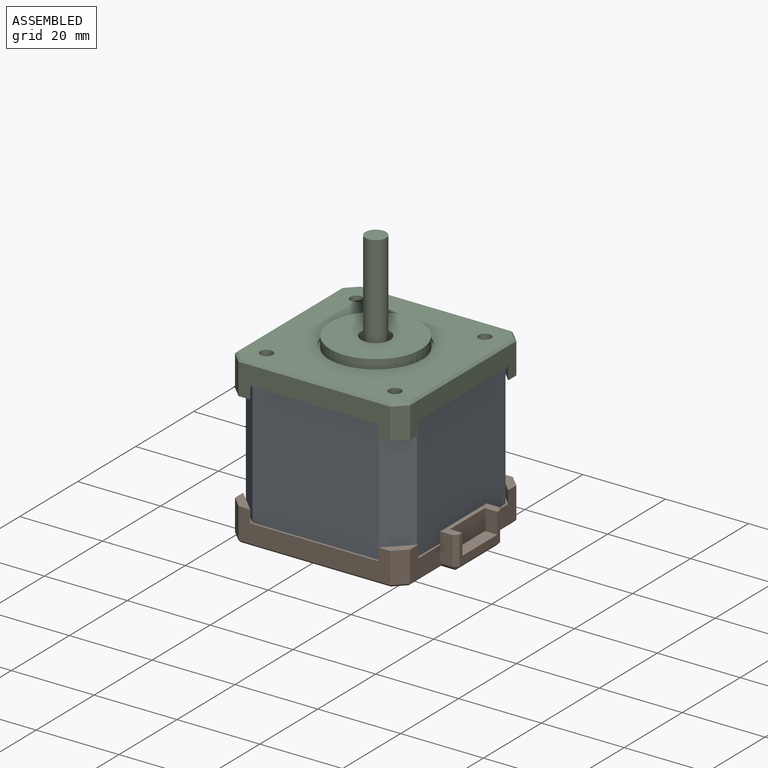
[diagram: assembled view]
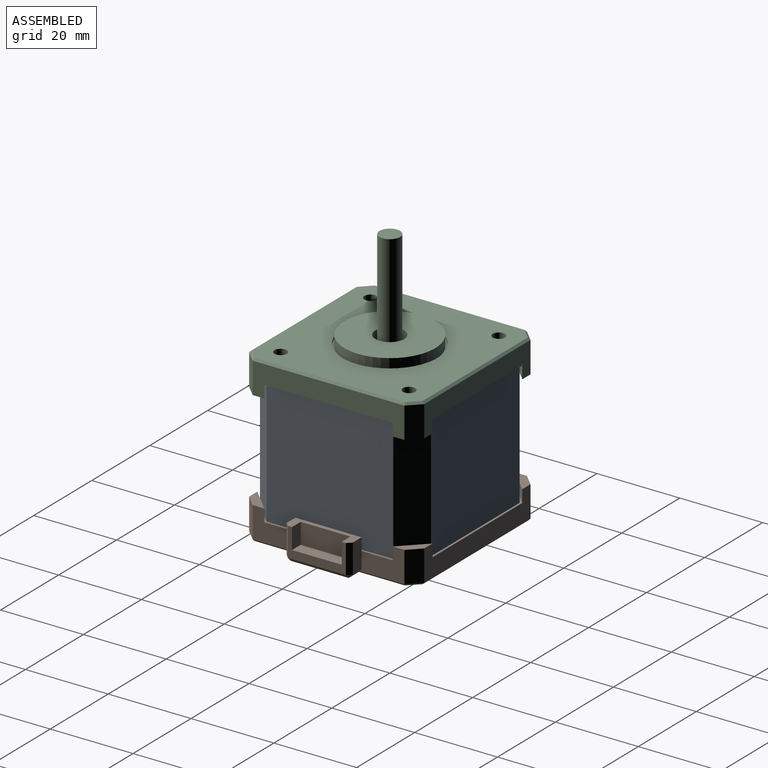
[diagram: assembled view, second angle]
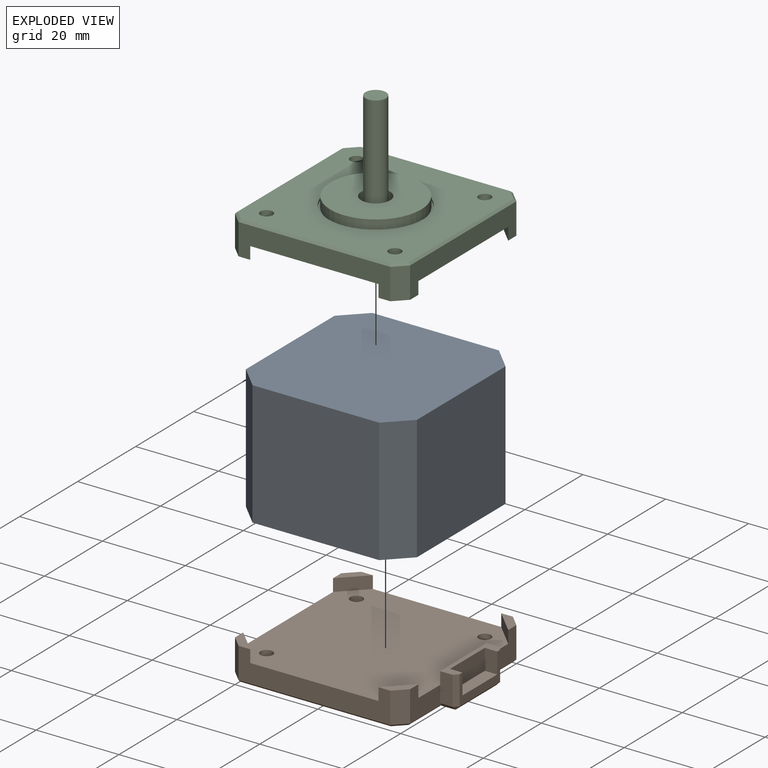
[diagram: exploded view]
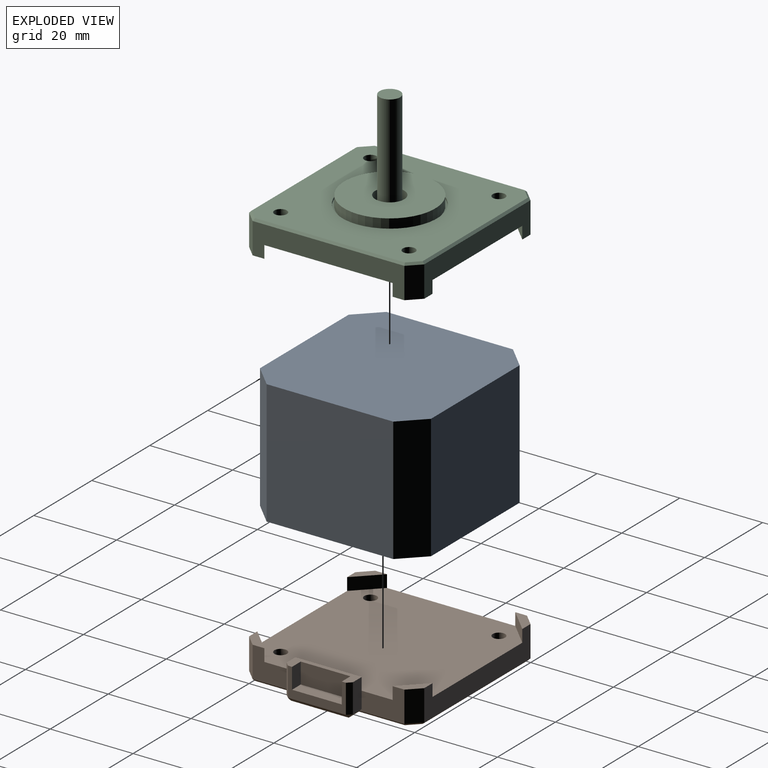
[diagram: exploded view, second angle]
ASSEMBLY  parts=3 mates=2
PART A: 10 faces, bbox 41.3x41.3x30 mm
  f0: plane 30.57x30mm, normal (0,1,0), area 917.2mm2, adj f1,f7,f8,f9
  f1: plane 30x5.36mm, normal (-0.71,0.71,0), area 227.6mm2, adj f0,f2,f8,f9
  f2: plane 30.57x30mm, normal (-1,0,0), area 917.2mm2, adj f1,f3,f8,f9
  f3: plane 30x5.36mm, normal (-0.71,-0.71,0), area 227.6mm2, adj f2,f4,f8,f9
  f4: plane 30.57x30mm, normal (0,-1,0), area 917.2mm2, adj f3,f5,f8,f9
  f5: plane 30x5.36mm, normal (0.71,-0.71,0), area 227.6mm2, adj f4,f6,f8,f9
  f6: plane 30.57x30mm, normal (1,0,0), area 917.2mm2, adj f5,f7,f8,f9
  f7: plane 30x5.36mm, normal (0.71,0.71,0), area 227.6mm2, adj f0,f6,f8,f9
  f8: plane 41.3x41.3mm, normal (0,0,1), area 1648.1mm2, adj f0,f1,f2,f3,f4,f5,f6,f7
  f9: plane 41.3x41.3mm, normal (0,0,-1), area 1648.1mm2, adj f0,f1,f2,f3,f4,f5,f6,f7
PART B: 48 faces, bbox 46.3x42.3x8 mm
  f0: plane 42.3x42.3mm, normal (0,0,-1), area 1697mm2, adj f1,f3,f5,f7,f9,f12,f13,f14
  f1: plane 10.82x7.5mm, normal (1,0,0), area 55.1mm2, adj f0,f2,f15,f22,f23,f32,f39
  f2: plane 7.5x2.83mm, normal (0.71,0.71,0), area 30mm2, adj f1,f3,f23,f40
  f3: plane 36.64x7.5mm, normal (0,1,0), area 181.9mm2, adj f0,f2,f4,f20,f21,f22,f23,f41
  f4: plane 7.5x2.83mm, normal (-0.71,0.71,0), area 30mm2, adj f3,f5,f21,f42
  f5: plane 36.64x7.5mm, normal (-1,0,0), area 181.9mm2, adj f0,f4,f6,f18,f19,f20,f21,f43
  f6: plane 7.5x2.83mm, normal (-0.71,-0.71,0), area 30mm2, adj f5,f7,f19,f44
  f7: plane 36.64x7.5mm, normal (0,-1,0), area 181.9mm2, adj f0,f6,f8,f18,f19,f29,f30,f45
  f8: plane 7.5x2.83mm, normal (0.71,-0.71,0), area 30mm2, adj f7,f9,f30,f46
  f9: plane 10.82x7.5mm, normal (1,0,0), area 55.1mm2, adj f0,f8,f10,f29,f30,f35,f47
  f10: plane 7x3mm, normal (0,-1,0), area 21mm2, adj f9,f25,f28,f35,f38
  f11: plane 14x7mm, normal (1,0,0), area 38mm2, adj f24,f26,f28,f31,f33,f36,f38
  f12: cylinder r=1.5mm len=5mm, axis (0,0,-1), area 47.1mm2, adj f0,f17
  f13: cylinder r=1.5mm len=5mm, axis (0,0,-1), area 47.1mm2, adj f0,f17
  f14: cylinder r=1.5mm len=5mm, axis (0,0,-1), area 47.1mm2, adj f0,f17
  f15: plane 7x3mm, normal (0,1,0), area 21mm2, adj f1,f25,f28,f32,f33
  f16: cylinder r=1.5mm len=5mm, axis (0,0,-1), area 47.1mm2, adj f0,f17
  f17: plane 44.8x41.3mm, normal (0,0,1), area 1713.6mm2, adj f12,f13,f14,f16,f32,f35,f36,f39
  f18: plane 5.66x5.66mm, normal (0.71,0.71,0), area 24mm2, adj f0,f5,f7,f19
  f19: plane 5.66x5.66mm, normal (0,0,-1), area 12mm2, adj f5,f6,f7,f18
  f20: plane 5.66x5.66mm, normal (0.71,-0.71,0), area 24mm2, adj f0,f3,f5,f21
  f21: plane 5.66x5.66mm, normal (0,0,-1), area 12mm2, adj f3,f4,f5,f20
  f22: plane 5.66x5.66mm, normal (-0.71,-0.71,0), area 24mm2, adj f0,f1,f3,f23
  f23: plane 5.66x5.66mm, normal (0,0,-1), area 12mm2, adj f1,f2,f3,f22
  f24: plane 5x3mm, normal (0,-1,0), area 15mm2, adj f11,f27,f28,f31
  f25: plane 16x3mm, normal (-1,0,0), area 48mm2, adj f0,f10,f15,f28
  f26: plane 5x3mm, normal (0,1,0), area 15mm2, adj f11,f27,f28,f31
  f27: plane 12x5mm, normal (1,0,0), area 60mm2, adj f24,f26,f28,f31
  f28: plane 16x4mm, normal (0,0,-1), area 27mm2, adj f10,f11,f15,f24,f25,f26,f27,f33
  f29: plane 5.66x5.66mm, normal (-0.71,0.71,0), area 24mm2, adj f0,f7,f9,f30
  f30: plane 5.66x5.66mm, normal (0,0,-1), area 12mm2, adj f7,f8,f9,f29
  f31: plane 12x3mm, normal (0,0,-1), area 36mm2, adj f11,f24,f26,f27
  f32: plane 3.5x1mm, normal (0,0.71,0.71), area 4.4mm2, adj f1,f15,f17,f34,f39
  f33: plane 7x1mm, normal (0.71,0.71,0), area 9.9mm2, adj f11,f15,f28,f34
  f34: plane 1x1mm, normal (0.58,0.58,0.58), area 0.9mm2, adj f32,f33,f36
  f35: plane 3.5x1mm, normal (0,-0.71,0.71), area 4.4mm2, adj f9,f10,f17,f37,f47
  f36: plane 14x1mm, normal (0.71,0,0.71), area 19.8mm2, adj f11,f17,f34,f37
  f37: plane 1x1mm, normal (0.58,-0.58,0.58), area 0.9mm2, adj f35,f36,f38
  f38: plane 7x1mm, normal (0.71,-0.71,0), area 9.9mm2, adj f10,f11,f28,f37
  f39: plane 11.32x0.5mm, normal (0.71,0,0.71), area 7.8mm2, adj f1,f17,f32,f40
  f40: plane 3.04x3.04mm, normal (0.5,0.5,0.71), area 2.7mm2, adj f2,f17,f39,f41
  f41: plane 36.64x0.5mm, normal (0,0.71,0.71), area 25.8mm2, adj f3,f17,f40,f42
  f42: plane 3.04x3.04mm, normal (-0.5,0.5,0.71), area 2.7mm2, adj f4,f17,f41,f43
  f43: plane 36.64x0.5mm, normal (-0.71,0,0.71), area 25.8mm2, adj f5,f17,f42,f44
  f44: plane 3.04x3.04mm, normal (-0.5,-0.5,0.71), area 2.7mm2, adj f6,f17,f43,f45
  f45: plane 36.64x0.5mm, normal (0,-0.71,0.71), area 25.8mm2, adj f7,f17,f44,f46
  f46: plane 3.04x3.04mm, normal (0.5,-0.5,0.71), area 2.7mm2, adj f8,f17,f45,f47
  f47: plane 11.32x0.5mm, normal (0.71,0,0.71), area 7.8mm2, adj f9,f17,f35,f46
PART C: 38 faces, bbox 42.3x42.3x32 mm
  f0: plane 36.64x7.5mm, normal (-1,0,0), area 181.9mm2, adj f1,f10,f13,f14,f15,f20,f21,f32
  f1: plane 7.5x2.83mm, normal (-0.71,-0.71,0), area 30mm2, adj f0,f2,f15,f34
  f2: plane 36.64x7.5mm, normal (0,-1,0), area 181.9mm2, adj f1,f3,f13,f14,f15,f16,f17,f36
  f3: plane 7.5x2.83mm, normal (0.71,-0.71,0), area 30mm2, adj f2,f4,f17,f37
  f4: plane 36.64x7.5mm, normal (1,0,0), area 181.9mm2, adj f3,f5,f13,f16,f17,f18,f19,f35
  f5: plane 7.5x2.83mm, normal (0.71,0.71,0), area 30mm2, adj f4,f6,f19,f33
  f6: plane 36.64x7.5mm, normal (0,1,0), area 181.9mm2, adj f5,f10,f13,f18,f19,f20,f21,f31
  f7: cylinder r=1.5mm len=5mm, axis (0,0,-1), area 47.1mm2, adj f12,f13
  f8: cylinder r=1.5mm len=5mm, axis (0,0,-1), area 47.1mm2, adj f12,f13
  f9: cylinder r=1.5mm len=5mm, axis (0,0,-1), area 47.1mm2, adj f12,f13
  f10: plane 7.5x2.83mm, normal (-0.71,0.71,0), area 30mm2, adj f0,f6,f21,f30
  f11: cylinder r=1.5mm len=5mm, axis (0,0,-1), area 47.1mm2, adj f12,f13
  f12: plane 41.3x41.3mm, normal (0,0,1), area 1249.1mm2, adj f7,f8,f9,f11,f23,f30,f31,f32
  f13: plane 42.3x42.3mm, normal (0,0,-1), area 1697mm2, adj f0,f2,f4,f6,f7,f8,f9,f11
  f14: plane 5.66x5.66mm, normal (0.71,0.71,0), area 24mm2, adj f0,f2,f13,f15
  f15: plane 5.66x5.66mm, normal (0,0,-1), area 12mm2, adj f0,f1,f2,f14
  f16: plane 5.66x5.66mm, normal (-0.71,0.71,0), area 24mm2, adj f2,f4,f13,f17
  f17: plane 5.66x5.66mm, normal (0,0,-1), area 12mm2, adj f2,f3,f4,f16
  f18: plane 5.66x5.66mm, normal (-0.71,-0.71,0), area 24mm2, adj f4,f6,f13,f19
  f19: plane 5.66x5.66mm, normal (0,0,-1), area 12mm2, adj f4,f5,f6,f18
  f20: plane 5.66x5.66mm, normal (0.71,-0.71,0), area 24mm2, adj f0,f6,f13,f21
  f21: plane 5.66x5.66mm, normal (0,0,-1), area 12mm2, adj f0,f6,f10,f20
  f22: cylinder r=11mm len=22mm, axis (0,0,-1), area 172.8mm2, adj f24,f25
  f23: cylinder r=11.5mm len=23mm, axis (0,0,-1), area 36.1mm2, adj f12,f24
  f24: plane 23x23mm, normal (0,0,1), area 35.3mm2, adj f22,f23
  f25: plane 22x22mm, normal (0,0,1), area 341.6mm2, adj f22,f27
  f26: cylinder r=2.5mm len=24.5mm, axis (0,0,-1), area 384.8mm2, adj f28,f29
  f27: cylinder r=3.5mm len=7mm, axis (0,0,-1), area 55mm2, adj f25,f28
  f28: plane 7x7mm, normal (0,0,1), area 18.8mm2, adj f26,f27
  f29: plane 5x5mm, normal (0,0,1), area 19.6mm2, adj f26
  f30: plane 3.04x3.04mm, normal (-0.5,0.5,0.71), area 2.7mm2, adj f10,f12,f31,f32
  f31: plane 36.64x0.5mm, normal (0,0.71,0.71), area 25.8mm2, adj f6,f12,f30,f33
  f32: plane 36.64x0.5mm, normal (-0.71,0,0.71), area 25.8mm2, adj f0,f12,f30,f34
  f33: plane 3.04x3.04mm, normal (0.5,0.5,0.71), area 2.7mm2, adj f5,f12,f31,f35
  f34: plane 3.04x3.04mm, normal (-0.5,-0.5,0.71), area 2.7mm2, adj f1,f12,f32,f36
  f35: plane 36.64x0.5mm, normal (0.71,0,0.71), area 25.8mm2, adj f4,f12,f33,f37
  f36: plane 36.64x0.5mm, normal (0,-0.71,0.71), area 25.8mm2, adj f2,f12,f34,f37
  f37: plane 3.04x3.04mm, normal (0.5,-0.5,0.71), area 2.7mm2, adj f3,f12,f35,f36
PLACE A t=(-62.3,-84.6,-30)mm
PLACE B rot(axis=(1,0,0),180deg) t=(0,104.6,-30)mm
PLACE C at identity fixed
MATE fastened B.f0 <-> A.f9  axis (0,0,1) through (0,0,-30)mm
MATE fastened C.f23 <-> A.f8  axis (0,0,-1) through (0,0,0)mm
